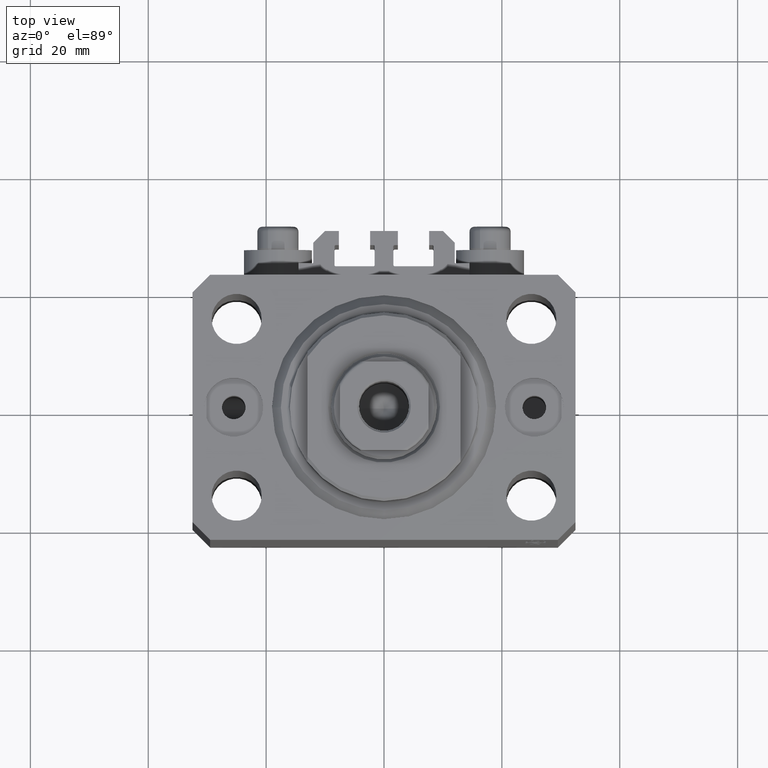
[diagram: clean part render]
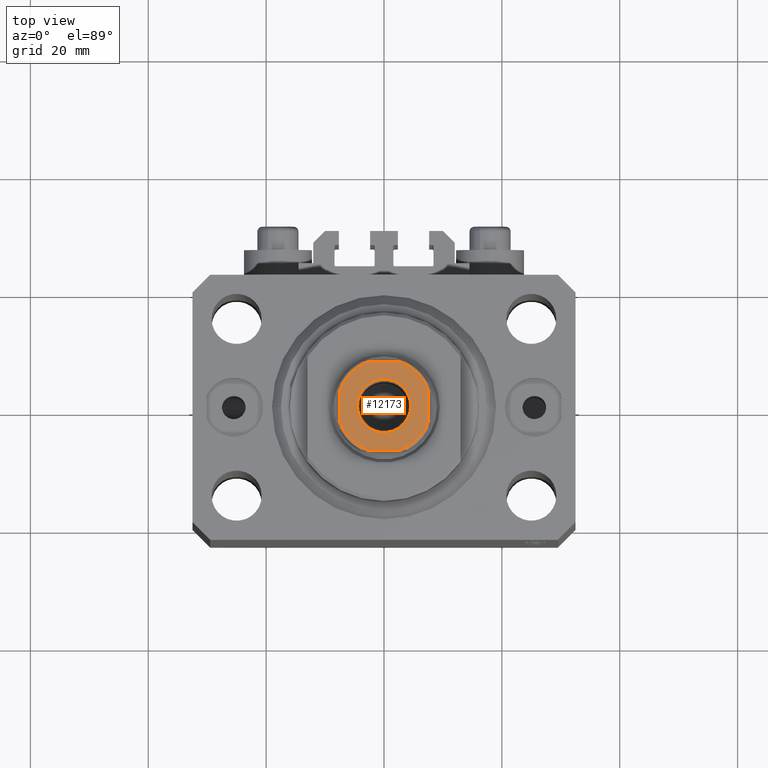
[diagram: same view with one face highlighted and labeled with its STEP entity id]
A machine part, top view. The second image highlights one B-rep face of the part: STEP entity #12173.
In plain terms, the highlighted planar face has unit normal (0, 0, 1).
Its self-contained STEP definition (entity closure, byte-faithful):
#692 = VERTEX_POINT ( 'NONE', #13415 ) ;
#771 = ORIENTED_EDGE ( 'NONE', *, *, #36779, .T. ) ;
#1990 = CARTESIAN_POINT ( 'NONE',  ( 2.783882181415008539, -7.500000000000000888, 84.00000000000000000 ) ) ;
#3047 = DIRECTION ( 'NONE',  ( -0.000000000000000000, 0.000000000000000000, 1.000000000000000000 ) ) ;
#3359 = ORIENTED_EDGE ( 'NONE', *, *, #16874, .T. ) ;
#3475 = AXIS2_PLACEMENT_3D ( 'NONE', #27126, #34276, #4682 ) ;
#4452 = VERTEX_POINT ( 'NONE', #20877 ) ;
#4682 = DIRECTION ( 'NONE',  ( 1.000000000000000000, 0.000000000000000000, 0.000000000000000000 ) ) ;
#5360 = DIRECTION ( 'NONE',  ( 0.000000000000000000, -0.000000000000000000, -1.000000000000000000 ) ) ;
#5910 = VERTEX_POINT ( 'NONE', #16943 ) ;
#7151 = ORIENTED_EDGE ( 'NONE', *, *, #45981, .T. ) ;
#9167 = ORIENTED_EDGE ( 'NONE', *, *, #36776, .T. ) ;
#9275 = DIRECTION ( 'NONE',  ( 0.000000000000000000, -0.000000000000000000, -1.000000000000000000 ) ) ;
#9510 = DIRECTION ( 'NONE',  ( 1.000000000000000000, 0.000000000000000000, 0.000000000000000000 ) ) ;
#9972 = VERTEX_POINT ( 'NONE', #13429 ) ;
#9981 = CARTESIAN_POINT ( 'NONE',  ( 0.000000000000000000, 0.000000000000000000, 84.00000000000000000 ) ) ;
#10654 = PLANE ( 'NONE',  #28543 ) ;
#11124 = CIRCLE ( 'NONE', #32465, 8.000000000000000000 ) ;
#11314 = CARTESIAN_POINT ( 'NONE',  ( -7.499999999999998224, 7.499999999999999112, 84.00000000000000000 ) ) ;
#11449 = DIRECTION ( 'NONE',  ( 1.000000000000000000, 0.000000000000000000, 0.000000000000000000 ) ) ;
#12173 = ADVANCED_FACE ( 'NONE', ( #33548, #15409 ), #10654, .T. ) ;
#13415 = CARTESIAN_POINT ( 'NONE',  ( -7.499999999999998224, 2.783882181415015644, 84.00000000000000000 ) ) ;
#13429 = CARTESIAN_POINT ( 'NONE',  ( -2.783882181415013868, 7.499999999999999112, 84.00000000000000000 ) ) ;
#13666 = VECTOR ( 'NONE', #29255, 1000.000000000000000 ) ;
#14145 = CIRCLE ( 'NONE', #3475, 8.000000000000000000 ) ;
#14384 = DIRECTION ( 'NONE',  ( 5.782411586589357392E-17, -1.000000000000000000, 0.000000000000000000 ) ) ;
#14795 = EDGE_CURVE ( 'NONE', #21248, #5910, #14145, .T. ) ;
#15238 = ORIENTED_EDGE ( 'NONE', *, *, #16311, .T. ) ;
#15401 = CARTESIAN_POINT ( 'NONE',  ( 7.500000000000001776, 7.500000000000000000, 84.00000000000000000 ) ) ;
#15409 = FACE_OUTER_BOUND ( 'NONE', #30838, .T. ) ;
#15780 = VERTEX_POINT ( 'NONE', #30525 ) ;
#16311 = EDGE_CURVE ( 'NONE', #42653, #18545, #11124, .T. ) ;
#16341 = DIRECTION ( 'NONE',  ( 1.000000000000000000, 0.000000000000000000, 0.000000000000000000 ) ) ;
#16874 = EDGE_CURVE ( 'NONE', #5910, #9972, #29230, .T. ) ;
#16943 = CARTESIAN_POINT ( 'NONE',  ( 2.783882181415012980, 7.500000000000000000, 84.00000000000000000 ) ) ;
#18283 = DIRECTION ( 'NONE',  ( -0.000000000000000000, 0.000000000000000000, 1.000000000000000000 ) ) ;
#18545 = VERTEX_POINT ( 'NONE', #19648 ) ;
#19648 = CARTESIAN_POINT ( 'NONE',  ( 7.500000000000000888, -2.783882181415009427, 84.00000000000000000 ) ) ;
#20258 = EDGE_CURVE ( 'NONE', #692, #34578, #32522, .T. ) ;
#20647 = DIRECTION ( 'NONE',  ( 1.000000000000000000, 5.782411586589358625E-17, 0.000000000000000000 ) ) ;
#20877 = CARTESIAN_POINT ( 'NONE',  ( 4.549999999999998934, 0.000000000000000000, 84.00000000000000000 ) ) ;
#21248 = VERTEX_POINT ( 'NONE', #31074 ) ;
#21486 = DIRECTION ( 'NONE',  ( -0.000000000000000000, 0.000000000000000000, 1.000000000000000000 ) ) ;
#23288 = ORIENTED_EDGE ( 'NONE', *, *, #14795, .T. ) ;
#23880 = AXIS2_PLACEMENT_3D ( 'NONE', #34718, #30672, #16341 ) ;
#24862 = DIRECTION ( 'NONE',  ( 1.000000000000000000, 0.000000000000000000, 0.000000000000000000 ) ) ;
#25604 = EDGE_CURVE ( 'NONE', #18545, #21248, #36894, .T. ) ;
#26132 = DIRECTION ( 'NONE',  ( -1.000000000000000000, -5.782411586589357392E-17, -0.000000000000000000 ) ) ;
#26388 = VECTOR ( 'NONE', #26132, 1000.000000000000000 ) ;
#27126 = CARTESIAN_POINT ( 'NONE',  ( 0.000000000000000000, 0.000000000000000000, 84.00000000000000000 ) ) ;
#27339 = LINE ( 'NONE', #31372, #40527 ) ;
#27423 = DIRECTION ( 'NONE',  ( 1.000000000000000000, 0.000000000000000000, 0.000000000000000000 ) ) ;
#27745 = ORIENTED_EDGE ( 'NONE', *, *, #45956, .T. ) ;
#28339 = EDGE_LOOP ( 'NONE', ( #7151, #771 ) ) ;
#28379 = CARTESIAN_POINT ( 'NONE',  ( 0.000000000000000000, 0.000000000000000000, 84.00000000000000000 ) ) ;
#28543 = AXIS2_PLACEMENT_3D ( 'NONE', #47177, #18283, #43828 ) ;
#28662 = ORIENTED_EDGE ( 'NONE', *, *, #46891, .T. ) ;
#28877 = CARTESIAN_POINT ( 'NONE',  ( 0.000000000000000000, 0.000000000000000000, 84.00000000000000000 ) ) ;
#29087 = AXIS2_PLACEMENT_3D ( 'NONE', #37818, #5360, #11449 ) ;
#29230 = LINE ( 'NONE', #11314, #26388 ) ;
#29255 = DIRECTION ( 'NONE',  ( 1.156482317317871478E-16, 1.000000000000000000, -0.000000000000000000 ) ) ;
#29834 = ORIENTED_EDGE ( 'NONE', *, *, #25604, .T. ) ;
#30304 = ORIENTED_EDGE ( 'NONE', *, *, #20258, .T. ) ;
#30525 = CARTESIAN_POINT ( 'NONE',  ( -4.549999999999998934, 5.572142936120455355E-16, 84.00000000000000000 ) ) ;
#30672 = DIRECTION ( 'NONE',  ( -0.000000000000000000, 0.000000000000000000, 1.000000000000000000 ) ) ;
#30838 = EDGE_LOOP ( 'NONE', ( #30304, #9167, #28662, #15238, #29834, #23288, #3359, #27745 ) ) ;
#31074 = CARTESIAN_POINT ( 'NONE',  ( 7.500000000000000888, 2.783882181415007206, 84.00000000000000000 ) ) ;
#31372 = CARTESIAN_POINT ( 'NONE',  ( -7.499999999999997335, -7.500000000000000888, 84.00000000000000000 ) ) ;
#32465 = AXIS2_PLACEMENT_3D ( 'NONE', #28877, #21486, #24862 ) ;
#32522 = LINE ( 'NONE', #47095, #45655 ) ;
#32660 = AXIS2_PLACEMENT_3D ( 'NONE', #28379, #3047, #9510 ) ;
#33548 = FACE_BOUND ( 'NONE', #28339, .T. ) ;
#34276 = DIRECTION ( 'NONE',  ( -0.000000000000000000, 0.000000000000000000, 1.000000000000000000 ) ) ;
#34578 = VERTEX_POINT ( 'NONE', #38666 ) ;
#34718 = CARTESIAN_POINT ( 'NONE',  ( 0.000000000000000000, 0.000000000000000000, 84.00000000000000000 ) ) ;
#36387 = VERTEX_POINT ( 'NONE', #44145 ) ;
#36480 = AXIS2_PLACEMENT_3D ( 'NONE', #9981, #9275, #27423 ) ;
#36776 = EDGE_CURVE ( 'NONE', #34578, #36387, #46386, .T. ) ;
#36779 = EDGE_CURVE ( 'NONE', #15780, #4452, #45644, .T. ) ;
#36894 = LINE ( 'NONE', #15401, #13666 ) ;
#37818 = CARTESIAN_POINT ( 'NONE',  ( 0.000000000000000000, 0.000000000000000000, 84.00000000000000000 ) ) ;
#38666 = CARTESIAN_POINT ( 'NONE',  ( -7.499999999999998224, -2.783882181415016088, 84.00000000000000000 ) ) ;
#40527 = VECTOR ( 'NONE', #20647, 1000.000000000000000 ) ;
#42653 = VERTEX_POINT ( 'NONE', #1990 ) ;
#42951 = CIRCLE ( 'NONE', #29087, 4.549999999999998934 ) ;
#43828 = DIRECTION ( 'NONE',  ( 1.000000000000000000, 0.000000000000000000, 0.000000000000000000 ) ) ;
#44145 = CARTESIAN_POINT ( 'NONE',  ( -2.783882181415010315, -7.500000000000000888, 84.00000000000000000 ) ) ;
#44427 = CIRCLE ( 'NONE', #23880, 8.000000000000000000 ) ;
#45644 = CIRCLE ( 'NONE', #36480, 4.549999999999998934 ) ;
#45655 = VECTOR ( 'NONE', #14384, 1000.000000000000000 ) ;
#45956 = EDGE_CURVE ( 'NONE', #9972, #692, #44427, .T. ) ;
#45981 = EDGE_CURVE ( 'NONE', #4452, #15780, #42951, .T. ) ;
#46386 = CIRCLE ( 'NONE', #32660, 8.000000000000000000 ) ;
#46891 = EDGE_CURVE ( 'NONE', #36387, #42653, #27339, .T. ) ;
#47095 = CARTESIAN_POINT ( 'NONE',  ( -7.499999999999998224, 7.499999999999999112, 84.00000000000000000 ) ) ;
#47177 = CARTESIAN_POINT ( 'NONE',  ( 0.000000000000000000, 0.000000000000000000, 84.00000000000000000 ) ) ;